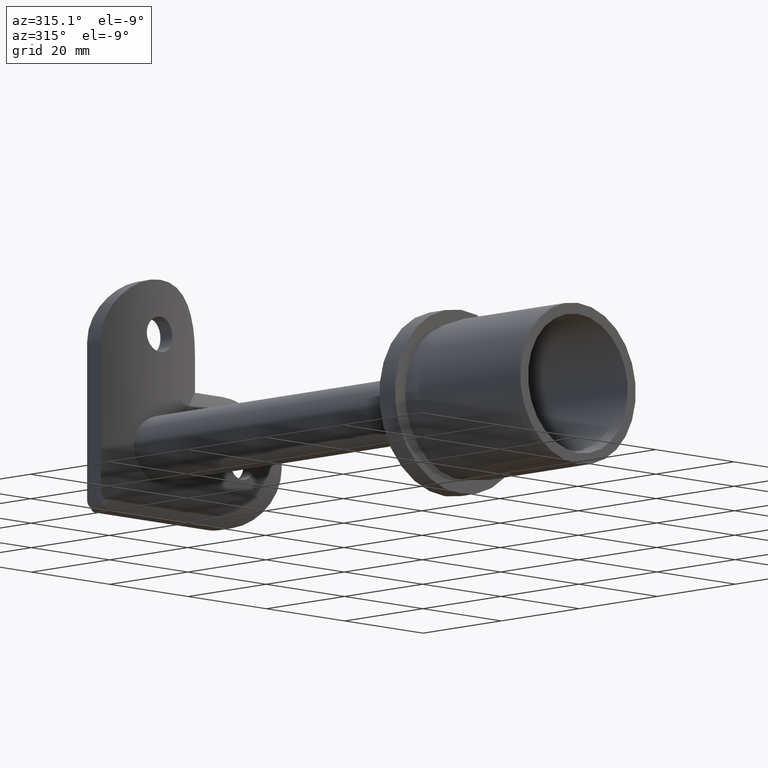
[diagram: clean part render]
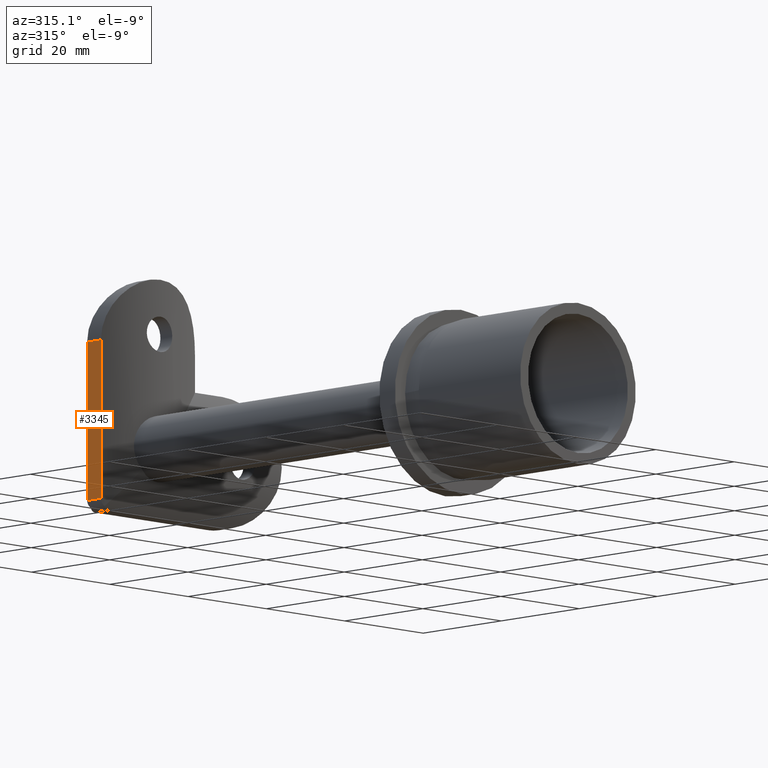
[diagram: same view with one face highlighted and labeled with its STEP entity id]
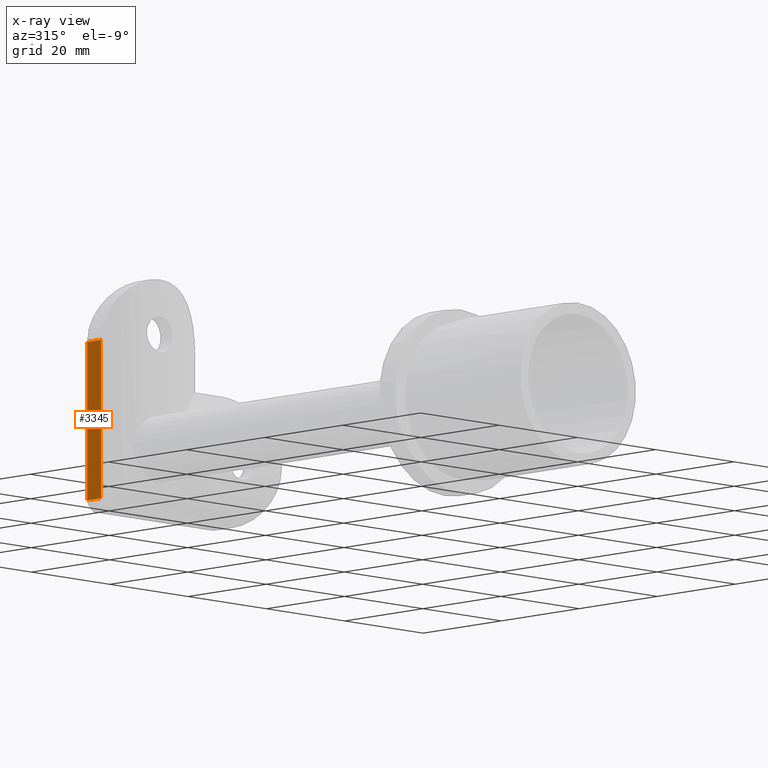
[diagram: x-ray of the same camera — body ghosted, the highlighted face saturated]
A machine part, auxiliary view. The second image highlights one B-rep face of the part: STEP entity #3345.
The next image is the same camera in x-ray: the body ghosted, the highlighted face saturated — about 0% of this face is hidden behind the body in this view.
In plain terms, the highlighted planar face has unit normal (-1, 0, 0).
Its self-contained STEP definition (entity closure, byte-faithful):
#427 = ORIENTED_EDGE ( 'NONE', *, *, #5736, .T. ) ;
#809 = VECTOR ( 'NONE', #9471, 1000.000000000000000 ) ;
#949 = CARTESIAN_POINT ( 'NONE',  ( -11.99999999999999500, 113.7231581800372300, 18.99999999999999600 ) ) ;
#1552 = VECTOR ( 'NONE', #10160, 1000.000000000000000 ) ;
#1773 = FACE_OUTER_BOUND ( 'NONE', #11653, .T. ) ;
#2109 = ORIENTED_EDGE ( 'NONE', *, *, #11154, .T. ) ;
#2162 = VECTOR ( 'NONE', #11866, 1000.000000000000000 ) ;
#2221 = ORIENTED_EDGE ( 'NONE', *, *, #4757, .T. ) ;
#2520 = DIRECTION ( 'NONE',  ( 1.078567042480934600E-014, 1.000000000000000000, -0.0000000000000000000 ) ) ;
#3345 = ADVANCED_FACE ( 'NONE', ( #1773 ), #5505, .T. ) ;
#3499 = VERTEX_POINT ( 'NONE', #949 ) ;
#3643 = CARTESIAN_POINT ( 'NONE',  ( -12.00000000000004600, 110.1847674293144300, -24.92390129802730300 ) ) ;
#3880 = CARTESIAN_POINT ( 'NONE',  ( -12.00000000000004400, 110.1847674293144300, -10.00000000000004600 ) ) ;
#4062 = VECTOR ( 'NONE', #2520, 1000.000000000000000 ) ;
#4733 = EDGE_CURVE ( 'NONE', #4819, #3499, #9680, .T. ) ;
#4757 = EDGE_CURVE ( 'NONE', #4819, #4975, #11033, .T. ) ;
#4819 = VERTEX_POINT ( 'NONE', #10828 ) ;
#4975 = VERTEX_POINT ( 'NONE', #3880 ) ;
#5505 = PLANE ( 'NONE',  #7680 ) ;
#5514 = VERTEX_POINT ( 'NONE', #9255 ) ;
#5736 = EDGE_CURVE ( 'NONE', #4975, #5514, #9970, .T. ) ;
#6165 = ORIENTED_EDGE ( 'NONE', *, *, #4733, .F. ) ;
#7363 = DIRECTION ( 'NONE',  ( -1.078567042480934600E-014, -1.000000000000000000, 0.0000000000000000000 ) ) ;
#7680 = AXIS2_PLACEMENT_3D ( 'NONE', #3643, #11309, #7363 ) ;
#9255 = CARTESIAN_POINT ( 'NONE',  ( -12.00000000000004100, 110.1847674293144300, 18.99999999999999600 ) ) ;
#9471 = DIRECTION ( 'NONE',  ( 1.224646799147353000E-016, -0.0000000000000000000, 1.000000000000000000 ) ) ;
#9680 = LINE ( 'NONE', #10089, #809 ) ;
#9761 = LINE ( 'NONE', #11193, #4062 ) ;
#9970 = LINE ( 'NONE', #11078, #1552 ) ;
#10089 = CARTESIAN_POINT ( 'NONE',  ( -12.00000000000000000, 113.7231581800372300, -24.92390129802730300 ) ) ;
#10160 = DIRECTION ( 'NONE',  ( 1.224646799147353000E-016, -0.0000000000000000000, 1.000000000000000000 ) ) ;
#10828 = CARTESIAN_POINT ( 'NONE',  ( -11.99999999999999800, 113.7231581800372300, -10.00000000000000700 ) ) ;
#11033 = LINE ( 'NONE', #11767, #2162 ) ;
#11078 = CARTESIAN_POINT ( 'NONE',  ( -12.00000000000004600, 110.1847674293144300, -24.92390129802730300 ) ) ;
#11154 = EDGE_CURVE ( 'NONE', #5514, #3499, #9761, .T. ) ;
#11193 = CARTESIAN_POINT ( 'NONE',  ( -12.00000000000004100, 110.1847674293144300, 18.99999999999999600 ) ) ;
#11309 = DIRECTION ( 'NONE',  ( -1.000000000000000000, 1.078567042480934600E-014, 1.224646799147353000E-016 ) ) ;
#11653 = EDGE_LOOP ( 'NONE', ( #6165, #2221, #427, #2109 ) ) ;
#11767 = CARTESIAN_POINT ( 'NONE',  ( -12.00000000000004400, 110.1847674293144200, -10.00000000000004600 ) ) ;
#11866 = DIRECTION ( 'NONE',  ( -1.078567042480934800E-014, -1.000000000000000000, -1.078567042480934500E-014 ) ) ;